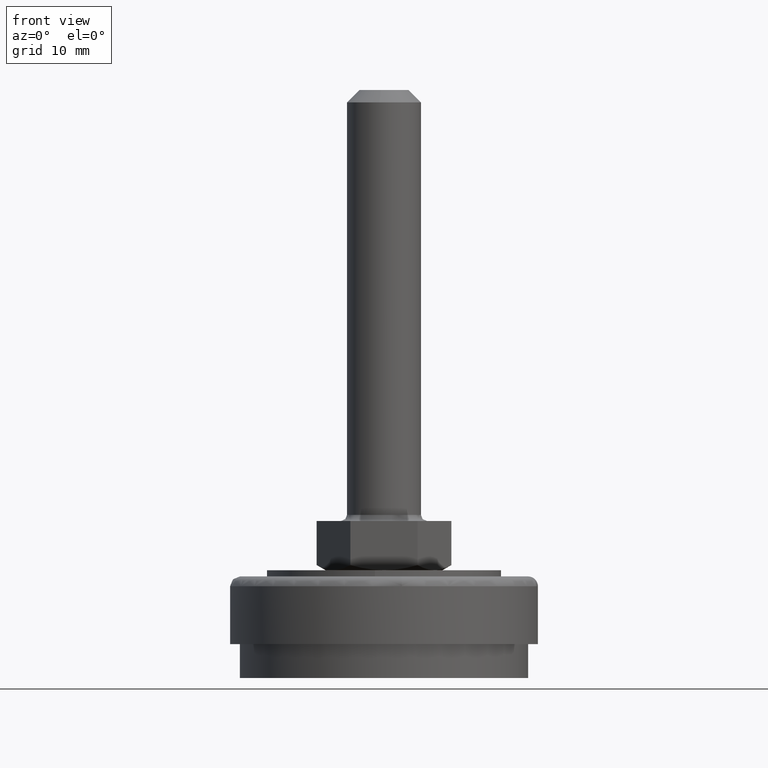
[diagram: clean part render]
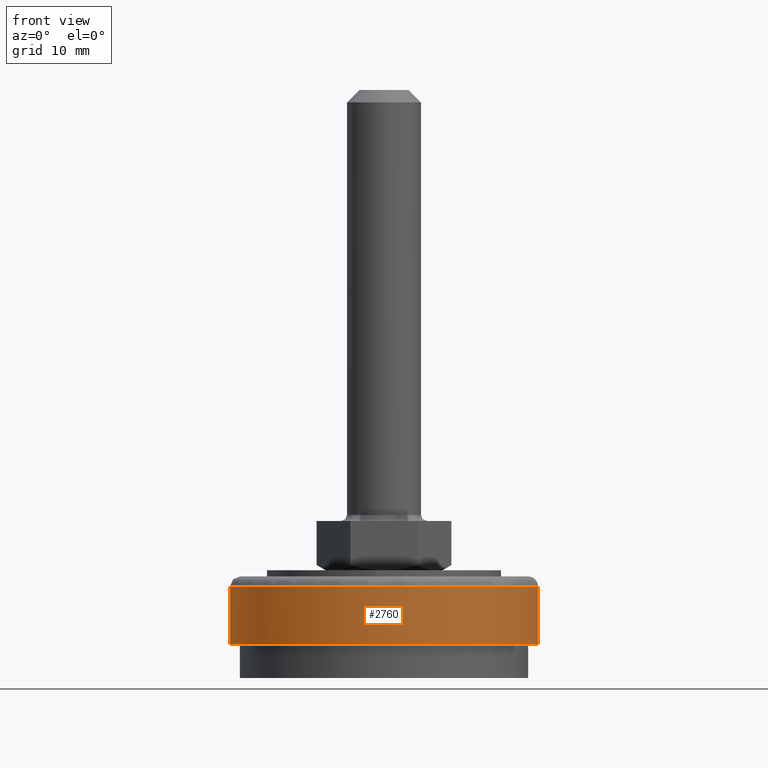
[diagram: same view with one face highlighted and labeled with its STEP entity id]
A machine part, front view. The second image highlights one B-rep face of the part: STEP entity #2760.
In plain terms, the highlighted face is a freeform B-spline surface patch.
Its self-contained STEP definition (entity closure, byte-faithful):
#2609=CARTESIAN_POINT('',(23.403589469416438,8.790449359789291,15.135000000073468));
#2610=CARTESIAN_POINT('',(24.724100484128762,5.274736292885194,15.135000000073465));
#2611=CARTESIAN_POINT('',(24.953369960546670,1.526213488371411,15.135000000073459));
#2612=CARTESIAN_POINT('',(26.479583448918074,-23.427156472175252,15.135000000073457));
#2613=CARTESIAN_POINT('',(1.526213488371411,-24.953369960546670,15.135000000073459));
#2614=CARTESIAN_POINT('',(-23.427156472175252,-26.479583448918074,15.135000000073457));
#2615=CARTESIAN_POINT('',(-24.953369960546670,-1.526213488371411,15.135000000073459));
#2616=CARTESIAN_POINT('',(-26.479583448918074,23.427156472175252,15.135000000073457));
#2617=CARTESIAN_POINT('',(-1.526213488371411,24.953369960546670,15.135000000073459));
#2618=CARTESIAN_POINT('',(23.403589469416438,8.790449359789291,5.259124999998165));
#2619=CARTESIAN_POINT('',(24.724100484128762,5.274736292885194,5.259124999998164));
#2620=CARTESIAN_POINT('',(24.953369960546670,1.526213488371411,5.259124999998164));
#2621=CARTESIAN_POINT('',(26.479583448918074,-23.427156472175252,5.259124999998164));
#2622=CARTESIAN_POINT('',(1.526213488371411,-24.953369960546670,5.259124999998164));
#2623=CARTESIAN_POINT('',(-23.427156472175252,-26.479583448918074,5.259124999998164));
#2624=CARTESIAN_POINT('',(-24.953369960546670,-1.526213488371411,5.259124999998164));
#2625=CARTESIAN_POINT('',(-26.479583448918074,23.427156472175252,5.259124999998164));
#2626=CARTESIAN_POINT('',(-1.526213488371411,24.953369960546670,5.259124999998164));
#2634=(BOUNDED_SURFACE()B_SPLINE_SURFACE(2,1,((#2609,#2618),(#2610,#2619),(#2611,#2620),(#2612,#2621),(#2613,#2622),(#2614,#2623),(#2615,#2624),(#2616,#2625),(#2617,#2626)),.UNSPECIFIED.,.F.,.F.,.U.)B_SPLINE_SURFACE_WITH_KNOTS((3,2,2,2,3),(2,2),(0.0,8.284271247461899,49.705627484771398,91.126983722080894,132.548339959390400),(0.0,9.875875000075300),.UNSPECIFIED.)GEOMETRIC_REPRESENTATION_ITEM()RATIONAL_B_SPLINE_SURFACE(((0.906274169979695,0.906274169979695),(0.941421356237309,0.941421356237309),(1.0,1.0),(0.707106781186548,0.707106781186548),(1.0,1.0),(0.707106781186548,0.707106781186548),(1.0,1.0),(0.707106781186548,0.707106781186548),(1.0,1.0)))REPRESENTATION_ITEM('')SURFACE());
#2635=CARTESIAN_POINT('',(23.403593343529121,8.790439045383224,14.900000000046250));
#2636=VERTEX_POINT('',#2635);
#2637=CARTESIAN_POINT('',(25.0,0.0,14.900000000071669));
#2638=VERTEX_POINT('',#2637);
#2639=CARTESIAN_POINT('',(23.403593343529113,8.790439045383224,14.900000000046250));
#2640=CARTESIAN_POINT('',(24.999999999999993,4.540178960989693,14.900000000058618));
#2641=CARTESIAN_POINT('',(25.0,0.0,14.900000000071669));
#2649=(BOUNDED_CURVE()B_SPLINE_CURVE(2,(#2639,#2640,#2641),.UNSPECIFIED.,.F.,.U.)B_SPLINE_CURVE_WITH_KNOTS((3,3),(0.440284240510419,0.500000000000000),.UNSPECIFIED.)CURVE()GEOMETRIC_REPRESENTATION_ITEM()RATIONAL_B_SPLINE_CURVE((0.893499639823775,0.930038635956827,1.0))REPRESENTATION_ITEM(''));
#2650=EDGE_CURVE('',#2636,#2638,#2649,.T.);
#2651=ORIENTED_EDGE('',*,*,#2650,.T.);
#2652=CARTESIAN_POINT('',(2.886605733205624,-24.832790969623691,14.900000000059940));
#2653=VERTEX_POINT('',#2652);
#2654=CARTESIAN_POINT('',(25.0,0.0,14.900000000071669));
#2655=CARTESIAN_POINT('',(25.000000000000011,-22.262292520621685,14.899999999999794));
#2656=CARTESIAN_POINT('',(2.886605733205623,-24.832790969623698,14.900000000059938));
#2664=(BOUNDED_CURVE()B_SPLINE_CURVE(2,(#2654,#2655,#2656),.UNSPECIFIED.,.F.,.U.)B_SPLINE_CURVE_WITH_KNOTS((3,3),(0.500000000000000,0.729999999999608),.UNSPECIFIED.)CURVE()GEOMETRIC_REPRESENTATION_ITEM()RATIONAL_B_SPLINE_CURVE((1.0,0.730538238692083,0.956886118189889))REPRESENTATION_ITEM(''));
#2665=EDGE_CURVE('',#2638,#2653,#2664,.T.);
#2666=ORIENTED_EDGE('',*,*,#2665,.T.);
#2667=CARTESIAN_POINT('',(-25.0,0.0,14.899999999999800));
#2668=VERTEX_POINT('',#2667);
#2669=CARTESIAN_POINT('',(2.886605733205624,-24.832790969623691,14.900000000059942));
#2670=CARTESIAN_POINT('',(1.448145727475993,-25.0,14.899999999999805));
#2671=CARTESIAN_POINT('',(0.0,-25.0,14.899999999999800));
#2672=CARTESIAN_POINT('',(-25.000000000000004,-25.000000000000004,14.899999999999807));
#2673=CARTESIAN_POINT('',(-25.0,0.0,14.899999999999800));
#2681=(BOUNDED_CURVE()B_SPLINE_CURVE(2,(#2669,#2670,#2671,#2672,#2673),.UNSPECIFIED.,.F.,.U.)B_SPLINE_CURVE_WITH_KNOTS((3,2,3),(0.729999999999608,0.750000000000000,1.0),.UNSPECIFIED.)CURVE()GEOMETRIC_REPRESENTATION_ITEM()RATIONAL_B_SPLINE_CURVE((0.956886118189888,0.976568542494464,1.0,0.707106781186547,1.0))REPRESENTATION_ITEM(''));
#2682=EDGE_CURVE('',#2653,#2668,#2681,.T.);
#2683=ORIENTED_EDGE('',*,*,#2682,.T.);
#2684=CARTESIAN_POINT('',(-1.526193271428666,24.953371197051428,14.900000000000020));
#2685=VERTEX_POINT('',#2684);
#2686=CARTESIAN_POINT('',(-25.0,0.0,14.899999999999800));
#2687=CARTESIAN_POINT('',(-25.000000000000004,23.517670761993944,14.899999999999794));
#2688=CARTESIAN_POINT('',(-1.526193271428666,24.953371197051425,14.900000000000013));
#2696=(BOUNDED_CURVE()B_SPLINE_CURVE(2,(#2686,#2687,#2688),.UNSPECIFIED.,.F.,.U.)B_SPLINE_CURVE_WITH_KNOTS((3,3),(0.0,0.239333102037472),.UNSPECIFIED.)CURVE()GEOMETRIC_REPRESENTATION_ITEM()RATIONAL_B_SPLINE_CURVE((1.0,0.719603829502545,0.976072341281762))REPRESENTATION_ITEM(''));
#2697=EDGE_CURVE('',#2668,#2685,#2696,.T.);
#2698=ORIENTED_EDGE('',*,*,#2697,.T.);
#2699=CARTESIAN_POINT('',(-1.526193515187521,24.953371182142892,5.499999999999998));
#2700=VERTEX_POINT('',#2699);
#2701=CARTESIAN_POINT('',(-1.526193271428666,24.953371197051428,14.900000000000020));
#2702=CARTESIAN_POINT('',(-1.526193515187521,24.953371182142892,5.499999999999998));
#2703=QUASI_UNIFORM_CURVE('',1,(#2701,#2702),.UNSPECIFIED.,.F.,.U.);
#2704=EDGE_CURVE('',#2685,#2700,#2703,.T.);
#2705=ORIENTED_EDGE('',*,*,#2704,.T.);
#2706=CARTESIAN_POINT('',(-25.0,0.0,5.500000000000000));
#2707=VERTEX_POINT('',#2706);
#2708=CARTESIAN_POINT('',(-25.0,0.0,5.500000000000000));
#2709=CARTESIAN_POINT('',(-25.0,23.517670531830557,5.500000000000001));
#2710=CARTESIAN_POINT('',(-1.526193515187522,24.953371182142885,5.499999999999998));
#2718=(BOUNDED_CURVE()B_SPLINE_CURVE(2,(#2708,#2709,#2710),.UNSPECIFIED.,.F.,.U.)B_SPLINE_CURVE_WITH_KNOTS((3,3),(0.0,0.239333100351936),.UNSPECIFIED.)CURVE()GEOMETRIC_REPRESENTATION_ITEM()RATIONAL_B_SPLINE_CURVE((1.0,0.719603831477274,0.976072337669332))REPRESENTATION_ITEM(''));
#2719=EDGE_CURVE('',#2707,#2700,#2718,.T.);
#2720=ORIENTED_EDGE('',*,*,#2719,.F.);
#2721=CARTESIAN_POINT('',(25.0,0.0,5.500000000000000));
#2722=VERTEX_POINT('',#2721);
#2723=CARTESIAN_POINT('',(25.0,0.0,5.500000000000000));
#2724=CARTESIAN_POINT('',(25.000000000000004,-25.000000000000004,5.500000000000000));
#2725=CARTESIAN_POINT('',(0.0,-25.0,5.500000000000000));
#2726=CARTESIAN_POINT('',(-25.000000000000004,-25.000000000000004,5.500000000000000));
#2727=CARTESIAN_POINT('',(-25.0,0.0,5.500000000000000));
#2735=(BOUNDED_CURVE()B_SPLINE_CURVE(2,(#2723,#2724,#2725,#2726,#2727),.UNSPECIFIED.,.F.,.U.)B_SPLINE_CURVE_WITH_KNOTS((3,2,3),(0.500000000000000,0.750000000000000,1.0),.UNSPECIFIED.)CURVE()GEOMETRIC_REPRESENTATION_ITEM()RATIONAL_B_SPLINE_CURVE((1.0,0.707106781186547,1.0,0.707106781186547,1.0))REPRESENTATION_ITEM(''));
#2736=EDGE_CURVE('',#2722,#2707,#2735,.T.);
#2737=ORIENTED_EDGE('',*,*,#2736,.F.);
#2738=CARTESIAN_POINT('',(23.403593296878931,8.790439169584483,5.499999999999999));
#2739=VERTEX_POINT('',#2738);
#2740=CARTESIAN_POINT('',(23.403593296878931,8.790439169584483,5.499999999999998));
#2741=CARTESIAN_POINT('',(24.999999999999996,4.540179029514179,5.500000000000000));
#2742=CARTESIAN_POINT('',(25.0,0.0,5.500000000000000));
#2750=(BOUNDED_CURVE()B_SPLINE_CURVE(2,(#2740,#2741,#2742),.UNSPECIFIED.,.F.,.U.)B_SPLINE_CURVE_WITH_KNOTS((3,3),(0.440284239672190,0.500000000000000),.UNSPECIFIED.)CURVE()GEOMETRIC_REPRESENTATION_ITEM()RATIONAL_B_SPLINE_CURVE((0.893499638797980,0.930038634974780,1.0))REPRESENTATION_ITEM(''));
#2751=EDGE_CURVE('',#2739,#2722,#2750,.T.);
#2752=ORIENTED_EDGE('',*,*,#2751,.F.);
#2753=CARTESIAN_POINT('',(23.403593343529121,8.790439045383224,14.900000000046250));
#2754=CARTESIAN_POINT('',(23.403593296878931,8.790439169584483,5.499999999999999));
#2755=QUASI_UNIFORM_CURVE('',1,(#2753,#2754),.UNSPECIFIED.,.F.,.U.);
#2756=EDGE_CURVE('',#2636,#2739,#2755,.T.);
#2757=ORIENTED_EDGE('',*,*,#2756,.F.);
#2758=EDGE_LOOP('',(#2651,#2666,#2683,#2698,#2705,#2720,#2737,#2752,#2757));
#2759=FACE_OUTER_BOUND('',#2758,.T.);
#2760=ADVANCED_FACE('',(#2759),#2634,.T.);